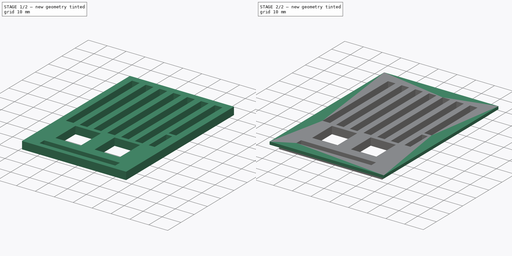
[diagram: build sequence overview — one tinted view per stage of 2, left to right]
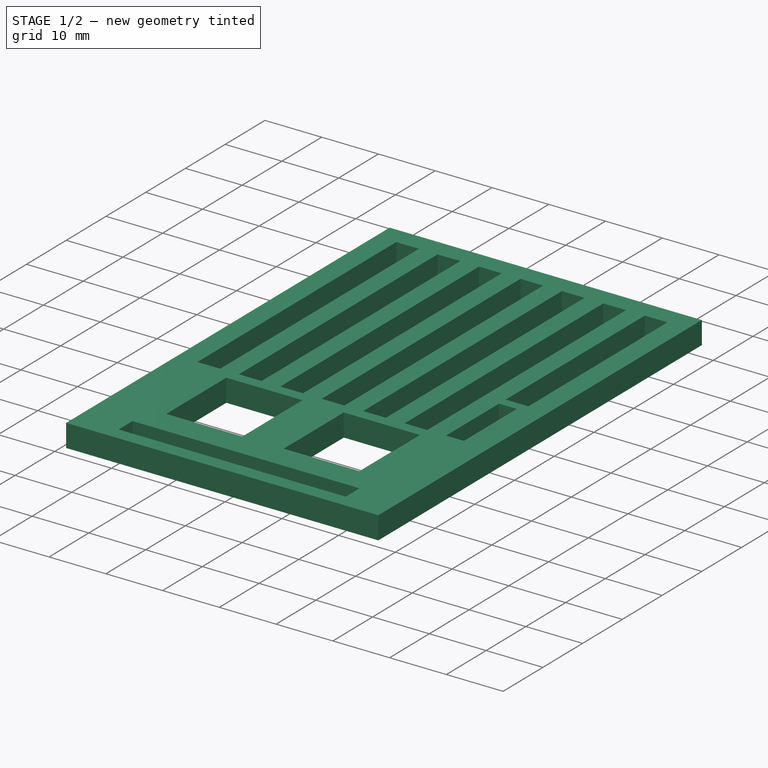
[diagram: stage 1 of 2 — iso view after this stage's code; geometry added in this stage tinted green]
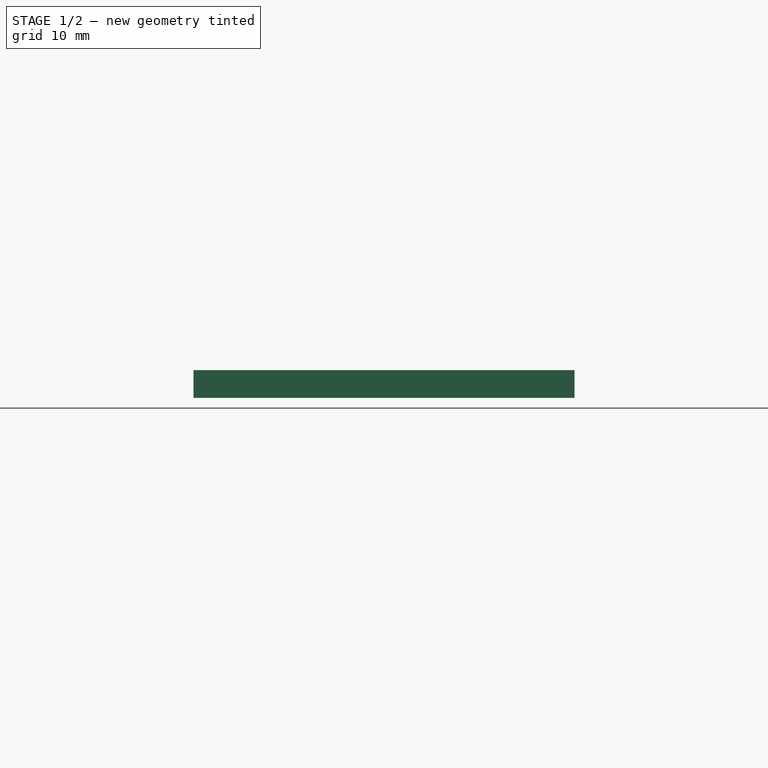
[diagram: stage 1 of 2 — front view after this stage's code; geometry added in this stage tinted green]
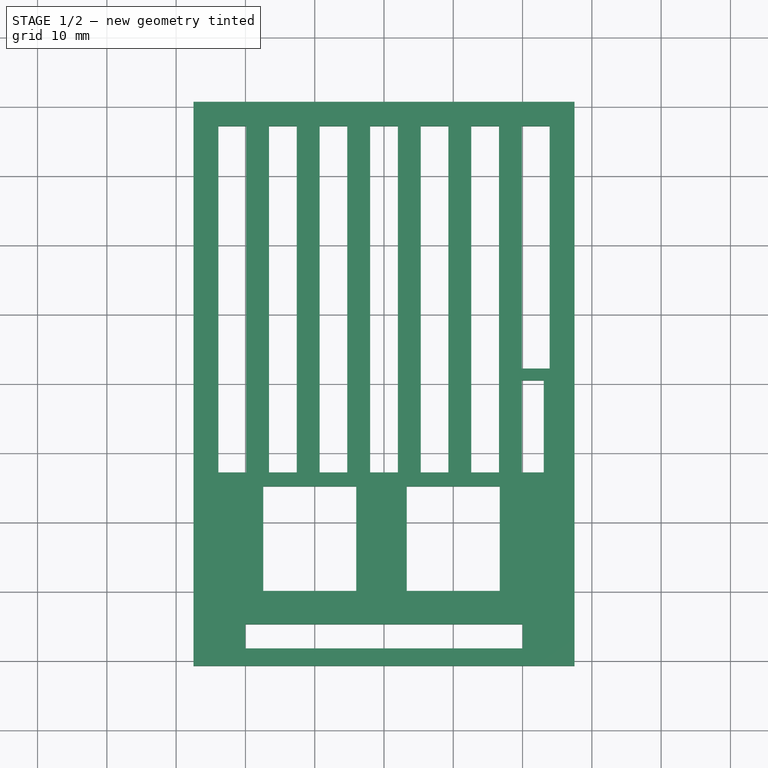
[diagram: stage 1 of 2 — top view after this stage's code; geometry added in this stage tinted green]
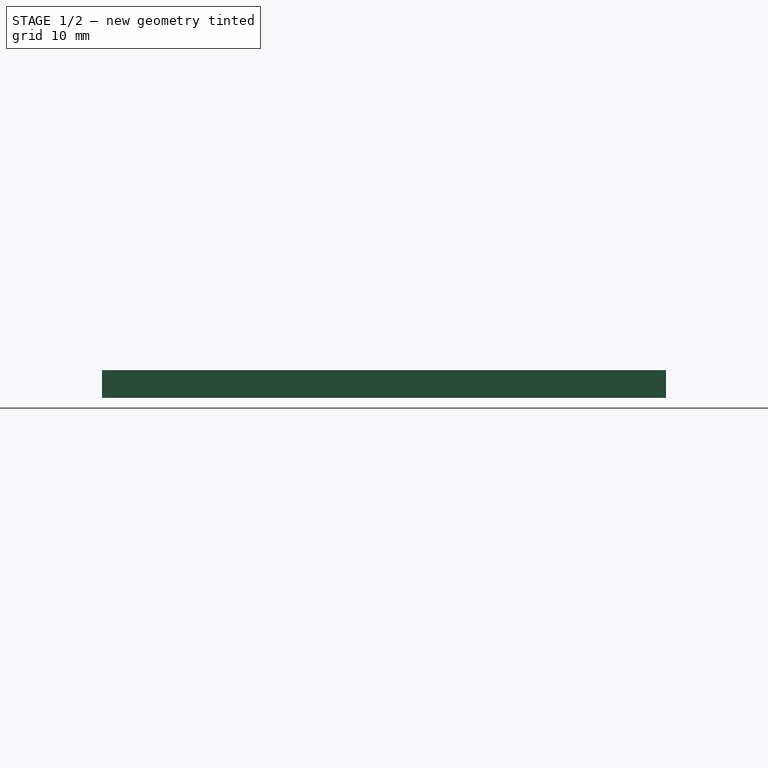
[diagram: stage 1 of 2 — right view after this stage's code; geometry added in this stage tinted green]
FCSTD DOCUMENT  (FreeCAD 0.16R4928 (Git))
Label: vent
License: CreativeCommons Attribution-ShareAlike
LicenseURL: http://creativecommons.org/licenses/by-sa/4.0/
objects: Sketcher::SketchObject×2, PartDesign::Pad×2
note: 6 computed .brp shape members not serialized (recipe doc carries the construction recipe); baked Part::Feature solids carry a one-line shape summary decoded from their .brp

FEATURE [Sketcher::SketchObject] Sketch
  sketch-geometry (56):
    g0: LineSegment StartX=-27.5 StartY=40.7 StartZ=0 EndX=27.5 EndY=40.7 EndZ=0
    g1: LineSegment StartX=27.5 StartY=40.7 StartZ=0 EndX=27.5 EndY=-40.7 EndZ=0
    g2: LineSegment StartX=27.5 StartY=-40.7 StartZ=0 EndX=-27.5 EndY=-40.7 EndZ=0
    g3: LineSegment StartX=-27.5 StartY=-40.7 StartZ=0 EndX=-27.5 EndY=40.7 EndZ=0
    g4: LineSegment StartX=-23.9 StartY=37.2 StartZ=0 EndX=-19.9 EndY=37.2 EndZ=0
    g5: LineSegment StartX=-19.9 StartY=37.2 StartZ=0 EndX=-19.9 EndY=-12.8 EndZ=0
    g6: LineSegment StartX=-19.9 StartY=-12.8 StartZ=0 EndX=-23.9 EndY=-12.8 EndZ=0
    g7: LineSegment StartX=-23.9 StartY=-12.8 StartZ=0 EndX=-23.9 EndY=37.2 EndZ=0
    g8: LineSegment StartX=-16.6 StartY=37.2 StartZ=0 EndX=-12.6 EndY=37.2 EndZ=0
    g9: LineSegment StartX=-12.6 StartY=37.2 StartZ=0 EndX=-12.6 EndY=-12.8 EndZ=0
    g10: LineSegment StartX=-12.6 StartY=-12.8 StartZ=0 EndX=-16.6 EndY=-12.8 EndZ=0
    g11: LineSegment StartX=-16.6 StartY=-12.8 StartZ=0 EndX=-16.6 EndY=37.2 EndZ=0
    g12: LineSegment StartX=-9.3 StartY=37.2 StartZ=0 EndX=-5.3 EndY=37.2 EndZ=0
    g13: LineSegment StartX=-5.3 StartY=37.2 StartZ=0 EndX=-5.3 EndY=-12.8 EndZ=0
    g14: LineSegment StartX=-5.3 StartY=-12.8 StartZ=0 EndX=-9.3 EndY=-12.8 EndZ=0
    g15: LineSegment StartX=-9.3 StartY=-12.8 StartZ=0 EndX=-9.3 EndY=37.2 EndZ=0
    g16: LineSegment StartX=-2 StartY=37.2 StartZ=0 EndX=2 EndY=37.2 EndZ=0
    g17: LineSegment StartX=2 StartY=37.2 StartZ=0 EndX=2 EndY=-12.8 EndZ=0
    g18: LineSegment StartX=2 StartY=-12.8 StartZ=0 EndX=-2 EndY=-12.8 EndZ=0
    g19: LineSegment StartX=-2 StartY=-12.8 StartZ=0 EndX=-2 EndY=37.2 EndZ=0
    g20: LineSegment StartX=5.3 StartY=37.2 StartZ=0 EndX=9.3 EndY=37.2 EndZ=0
    g21: LineSegment StartX=9.3 StartY=37.2 StartZ=0 EndX=9.3 EndY=-12.8 EndZ=0
    g22: LineSegment StartX=9.3 StartY=-12.8 StartZ=0 EndX=5.3 EndY=-12.8 EndZ=0
    g23: LineSegment StartX=5.3 StartY=-12.8 StartZ=0 EndX=5.3 EndY=37.2 EndZ=0
    g24: LineSegment StartX=12.6 StartY=37.2 StartZ=0 EndX=16.6 EndY=37.2 EndZ=0
    g25: LineSegment StartX=16.6 StartY=37.2 StartZ=0 EndX=16.6 EndY=-12.8 EndZ=0
    g26: LineSegment StartX=16.6 StartY=-12.8 StartZ=0 EndX=12.6 EndY=-12.8 EndZ=0
    g27: LineSegment StartX=12.6 StartY=-12.8 StartZ=0 EndX=12.6 EndY=37.2 EndZ=0
    g28: LineSegment StartX=19.9 StartY=37.2 StartZ=0 EndX=23.9 EndY=37.2 EndZ=0
    g29: LineSegment StartX=23.9 StartY=37.2 StartZ=0 EndX=23.9 EndY=2.2 EndZ=0
    g30: LineSegment StartX=23.9 StartY=2.2 StartZ=0 EndX=19.9 EndY=2.2 EndZ=0
    g31: LineSegment StartX=19.9 StartY=2.2 StartZ=0 EndX=19.9 EndY=37.2 EndZ=0
    g32: LineSegment StartX=19.9 StartY=0.5 StartZ=0 EndX=23.05 EndY=0.5 EndZ=0
    g33: LineSegment StartX=23.05 StartY=0.5 StartZ=0 EndX=23.05 EndY=-12.8 EndZ=0
    g34: LineSegment StartX=23.05 StartY=-12.8 StartZ=0 EndX=19.9 EndY=-12.8 EndZ=0
    g35: LineSegment StartX=19.9 StartY=-12.8 StartZ=0 EndX=19.9 EndY=0.5 EndZ=0
    g36: LineSegment [constr] StartX=-19.9 StartY=37.2 StartZ=0 EndX=-16.6 EndY=37.2 EndZ=0
    g37: LineSegment [constr] StartX=-12.6 StartY=37.2 StartZ=0 EndX=-9.3 EndY=37.2 EndZ=0
    g38: LineSegment [constr] StartX=-5.3 StartY=37.2 StartZ=0 EndX=-2 EndY=37.2 EndZ=0
    g39: LineSegment [constr] StartX=2 StartY=37.2 StartZ=0 EndX=5.3 EndY=37.2 EndZ=0
    g40: LineSegment [constr] StartX=9.3 StartY=37.2 StartZ=0 EndX=12.6 EndY=37.2 EndZ=0
    g41: LineSegment [constr] StartX=16.6 StartY=37.2 StartZ=0 EndX=19.9 EndY=37.2 EndZ=0
    g42: LineSegment [constr] StartX=16.6 StartY=-12.8 StartZ=0 EndX=19.9 EndY=-12.8 EndZ=0
    g43: LineSegment StartX=-17.42 StartY=-14.8 StartZ=0 EndX=-4 EndY=-14.8 EndZ=0
    g44: LineSegment StartX=-4 StartY=-14.8 StartZ=0 EndX=-4 EndY=-29.9 EndZ=0
    g45: LineSegment StartX=-4 StartY=-29.9 StartZ=0 EndX=-17.42 EndY=-29.9 EndZ=0
    g46: LineSegment StartX=-17.42 StartY=-29.9 StartZ=0 EndX=-17.42 EndY=-14.8 EndZ=0
    g47: LineSegment StartX=3.28 StartY=-14.8 StartZ=0 EndX=16.7 EndY=-14.8 EndZ=0
    g48: LineSegment StartX=16.7 StartY=-14.8 StartZ=0 EndX=16.7 EndY=-29.9 EndZ=0
    g49: LineSegment StartX=16.7 StartY=-29.9 StartZ=0 EndX=3.28 EndY=-29.9 EndZ=0
    g50: LineSegment StartX=3.28 StartY=-29.9 StartZ=0 EndX=3.28 EndY=-14.8 EndZ=0
    g51: LineSegment StartX=-20 StartY=-34.7 StartZ=0 EndX=20 EndY=-34.7 EndZ=0
    g52: LineSegment StartX=20 StartY=-34.7 StartZ=0 EndX=20 EndY=-38.2 EndZ=0
    g53: LineSegment StartX=20 StartY=-38.2 StartZ=0 EndX=-20 EndY=-38.2 EndZ=0
    g54: LineSegment StartX=-20 StartY=-38.2 StartZ=0 EndX=-20 EndY=-34.7 EndZ=0
    g55: LineSegment [constr] StartX=-4 StartY=-29.9 StartZ=0 EndX=3.28 EndY=-29.9 EndZ=0
  constraints (159):
    c: Coincident(g0,g1)
    c: Coincident(g1,g2)
    c: Coincident(g2,g3)
    c: Coincident(g3,g0)
    c: Horizontal(g0)
    c: Horizontal(g2)
    c: Vertical(g1)
    c: Vertical(g3)
    c: DistanceX(g0) = 55
    c: DistanceY(g1) = -81.4
    c: Symmetric(g0,g1,g-1)
    c: Coincident(g4,g5)
    c: Coincident(g5,g6)
    c: Coincident(g6,g7)
    c: Coincident(g7,g4)
    c: Horizontal(g4)
    c: Horizontal(g6)
    c: Vertical(g5)
    c: Vertical(g7)
    c: Coincident(g8,g9)
    c: Coincident(g9,g10)
    c: Coincident(g10,g11)
    c: Coincident(g11,g8)
    c: Horizontal(g8)
    c: Horizontal(g10)
    c: Vertical(g9)
    c: Vertical(g11)
    c: Coincident(g12,g13)
    c: Coincident(g13,g14)
    c: Coincident(g14,g15)
    c: Coincident(g15,g12)
    c: Horizontal(g12)
    c: Horizontal(g14)
    c: Vertical(g13)
    c: Vertical(g15)
    c: Coincident(g16,g17)
    c: Coincident(g17,g18)
    c: Coincident(g18,g19)
    c: Coincident(g19,g16)
    c: Horizontal(g16)
    c: Horizontal(g18)
    c: Vertical(g17)
    c: Vertical(g19)
    c: Coincident(g20,g21)
    c: Coincident(g21,g22)
    c: Coincident(g22,g23)
    c: Coincident(g23,g20)
    c: Horizontal(g20)
    c: Horizontal(g22)
    c: Vertical(g21)
    c: Vertical(g23)
    c: Coincident(g24,g25)
    c: Coincident(g25,g26)
    c: Coincident(g26,g27)
    c: Coincident(g27,g24)
    c: Horizontal(g24)
    c: Horizontal(g26)
    c: Vertical(g25)
    c: Vertical(g27)
    c: Coincident(g28,g29)
    c: Coincident(g29,g30)
    c: Coincident(g30,g31)
    c: Coincident(g31,g28)
    c: Horizontal(g28)
    c: Horizontal(g30)
    c: Vertical(g29)
    c: Vertical(g31)
    c: Coincident(g32,g33)
    c: Coincident(g33,g34)
    c: Coincident(g34,g35)
    c: Coincident(g35,g32)
    c: Horizontal(g32)
    c: Horizontal(g34)
    c: Vertical(g33)
    c: Vertical(g35)
    c: Equal(g7,g11)
    c: Equal(g11,g15)
    c: Equal(g15,g19)
    c: Equal(g19,g23)
    c: Equal(g23,g27)
    c: Equal(g8,g4)
    c: Equal(g4,g12)
    c: Equal(g12,g16)
    c: Equal(g16,g20)
    c: Equal(g20,g24)
    c: Equal(g24,g28)
    c: Coincident(g36,g4)
    c: Coincident(g36,g8)
    c: Horizontal(g37)
    c: Coincident(g38,g12)
    c: Horizontal(g38)
    c: Horizontal(g39)
    c: Horizontal(g40)
    c: Horizontal(g41)
    c: Coincident(g41,g24)
    c: Coincident(g41,g28)
    c: Horizontal(g36)
    c: Coincident(g8,g37)
    c: Coincident(g37,g12)
    c: Coincident(g38,g16)
    c: Coincident(g39,g16)
    c: Coincident(g20,g39)
    c: Coincident(g40,g20)
    c: Coincident(g24,g40)
    c: Equal(g36,g37)
    c: Equal(g37,g38)
    c: Equal(g38,g39)
    c: Equal(g39,g40)
    c: Equal(g40,g41)
    c: Coincident(g42,g25)
    c: Coincident(g42,g34)
    c: Horizontal(g42)
    c: Coincident(g43,g44)
    c: Coincident(g44,g45)
    c: Coincident(g45,g46)
    c: Coincident(g46,g43)
    c: Horizontal(g43)
    c: Horizontal(g45)
    c: Vertical(g44)
    c: Vertical(g46)
    c: Coincident(g47,g48)
    c: Coincident(g48,g49)
    c: Coincident(g49,g50)
    c: Coincident(g50,g47)
    c: Horizontal(g47)
    c: Horizontal(g49)
    c: Vertical(g48)
    c: Vertical(g50)
    c: Coincident(g51,g52)
    c: Coincident(g52,g53)
    c: Coincident(g53,g54)
    c: Coincident(g54,g51)
    c: Horizontal(g51)
    c: Horizontal(g53)
    c: Vertical(g52)
    c: Vertical(g54)
    c: Symmetric(g52,g53,g-2)
    c: Coincident(g55,g44)
    c: Horizontal(g55)
    c: Coincident(g55,g49)
    c: Equal(g46,g48)
    c: Equal(g43,g47)
    c: DistanceX(g48,g1) = 10.8
    c: DistanceX(g47) = 13.42
    c: DistanceY(g48) = -15.1
    c: DistanceY(g45,g2) = -10.8
    c: DistanceX(g55) = 7.28
    c: DistanceY(g52) = -3.5
    c: DistanceX(g53) = -40
    c: DistanceY(g53,g2) = -2.5
    c: DistanceY(g7) = 50
    c: DistanceY(g4,g0) = 3.5
    c: Symmetric(g4,g28,g-2)
    c: DistanceX(g8) = 4
    c: DistanceX(g36) = 3.3
    c: DistanceX(g34) = -3.15
    c: DistanceY(g33) = -13.3
    c: Equal(g42,g41)
    c: DistanceY(g29) = -35
FEATURE [PartDesign::Pad] Pad
  Length = 4
  Length2 = 100
  Sketch = -> Sketch
  Type = 0
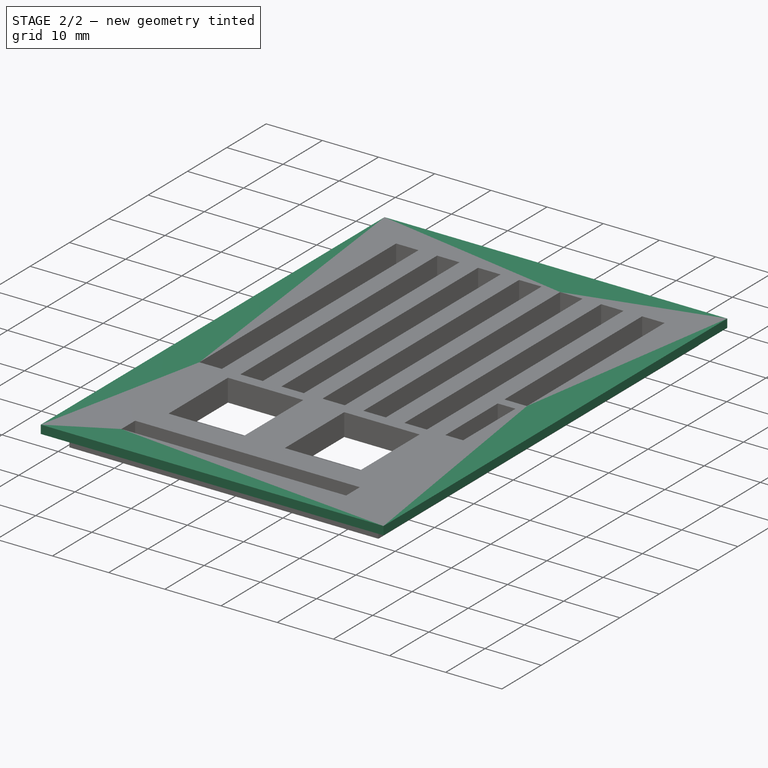
[diagram: stage 2 of 2 — iso view after this stage's code; geometry added in this stage tinted green]
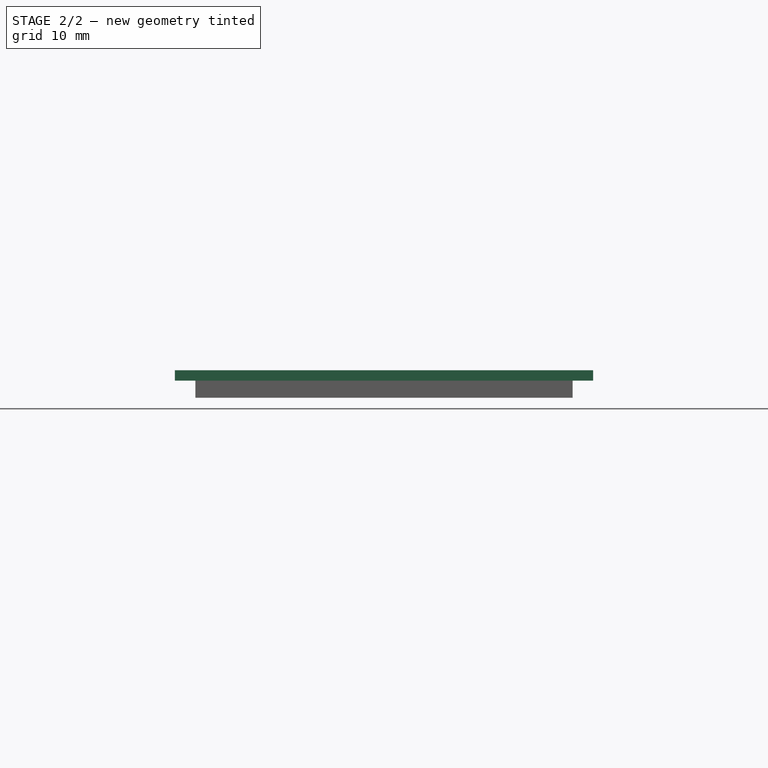
[diagram: stage 2 of 2 — front view after this stage's code; geometry added in this stage tinted green]
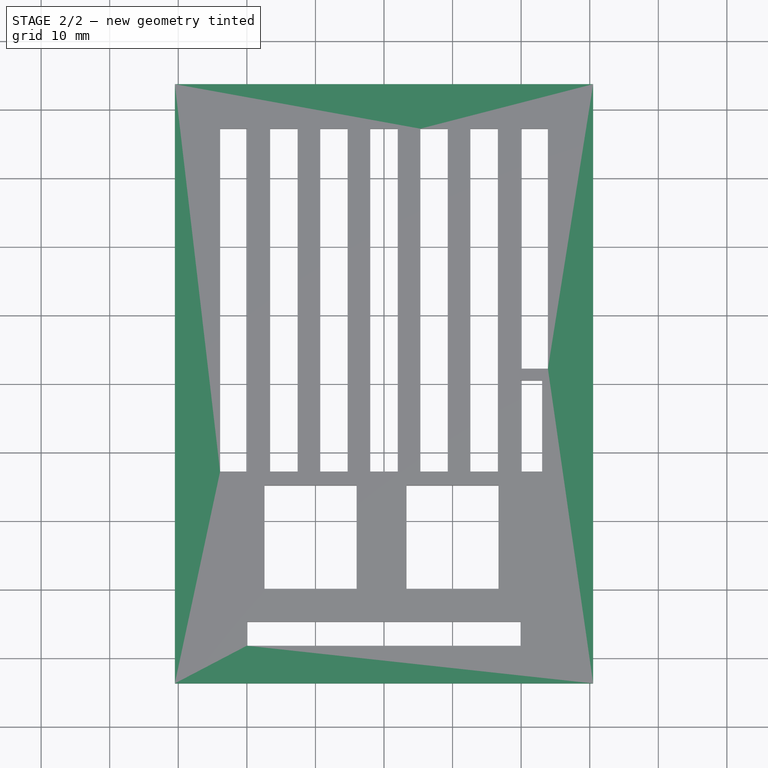
[diagram: stage 2 of 2 — top view after this stage's code; geometry added in this stage tinted green]
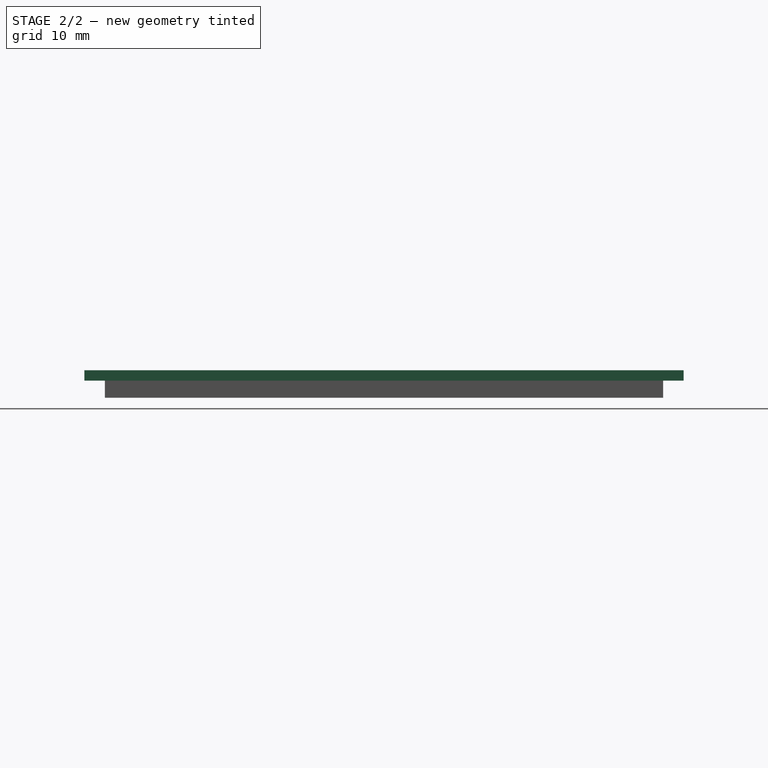
[diagram: stage 2 of 2 — right view after this stage's code; geometry added in this stage tinted green]
FEATURE [Sketcher::SketchObject] Sketch001
  ExternalGeometry = -> [Pad]
  Placement = pos=(0,0,4) rot=(0,0,1;0rad)
  Support = -> Pad [Face50]
  sketch-geometry (8):
    g0: LineSegment StartX=-27.5 StartY=40.7 StartZ=0 EndX=27.5 EndY=40.7 EndZ=0
    g1: LineSegment StartX=27.5 StartY=40.7 StartZ=0 EndX=27.5 EndY=-40.7 EndZ=0
    g2: LineSegment StartX=27.5 StartY=-40.7 StartZ=0 EndX=-27.5 EndY=-40.7 EndZ=0
    g3: LineSegment StartX=-27.5 StartY=-40.7 StartZ=0 EndX=-27.5 EndY=40.7 EndZ=0
    g4: LineSegment StartX=-30.5 StartY=43.7 StartZ=0 EndX=30.5 EndY=43.7 EndZ=0
    g5: LineSegment StartX=30.5 StartY=43.7 StartZ=0 EndX=30.5 EndY=-43.7 EndZ=0
    g6: LineSegment StartX=30.5 StartY=-43.7 StartZ=0 EndX=-30.5 EndY=-43.7 EndZ=0
    g7: LineSegment StartX=-30.5 StartY=-43.7 StartZ=0 EndX=-30.5 EndY=43.7 EndZ=0
  constraints (21):
    c: Coincident(g0,g1)
    c: Coincident(g1,g2)
    c: Coincident(g2,g3)
    c: Coincident(g3,g0)
    c: Horizontal(g0)
    c: Horizontal(g2)
    c: Vertical(g1)
    c: Vertical(g3)
    c: Coincident(g0,g-3)
    c: Coincident(g1,g-4)
    c: Coincident(g4,g5)
    c: Coincident(g5,g6)
    c: Coincident(g6,g7)
    c: Coincident(g7,g4)
    c: Horizontal(g4)
    c: Horizontal(g6)
    c: Vertical(g5)
    c: Vertical(g7)
    c: Symmetric(g5,g4,g-1)
    c: DistanceX(g0,g4) = 3
    c: DistanceY(g0,g4) = 3
FEATURE [PartDesign::Pad] Pad001
  Length = 1.5
  Length2 = 100
  Reversed = true
  Sketch = -> Sketch001
  Type = 0
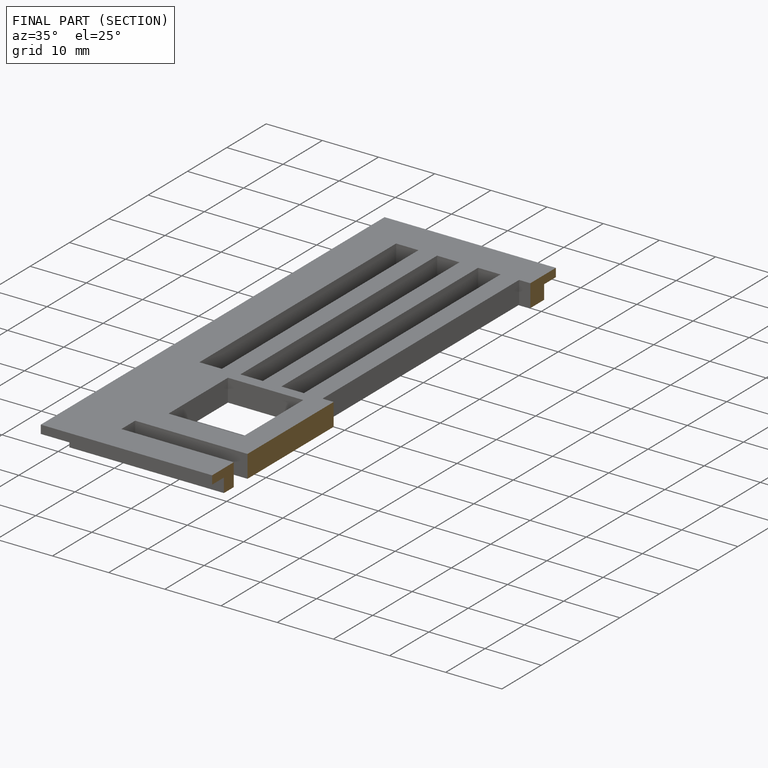
[diagram: finished part — half-section view (interior)]
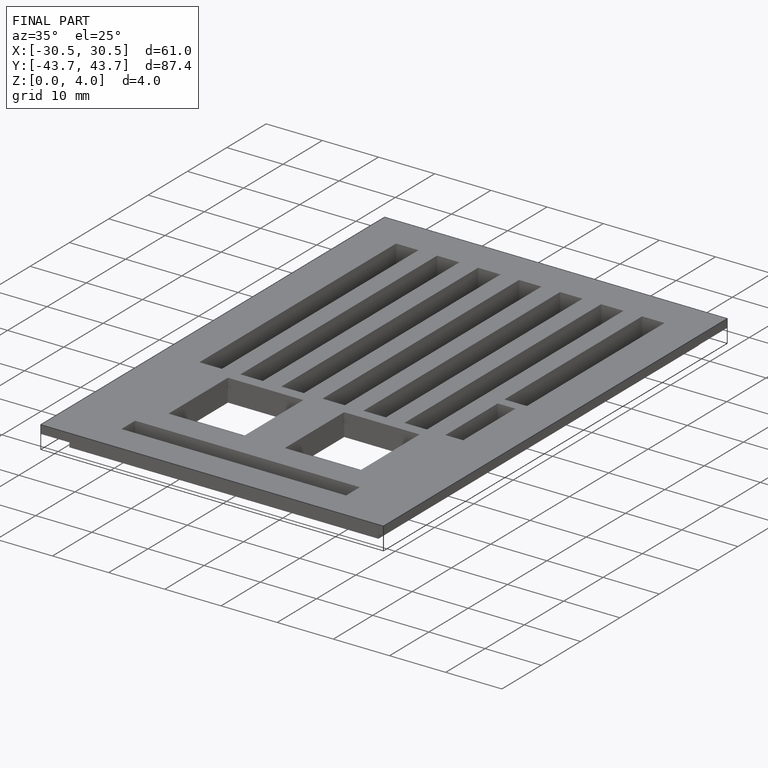
[diagram: finished part — iso view with bounding-box wireframe]
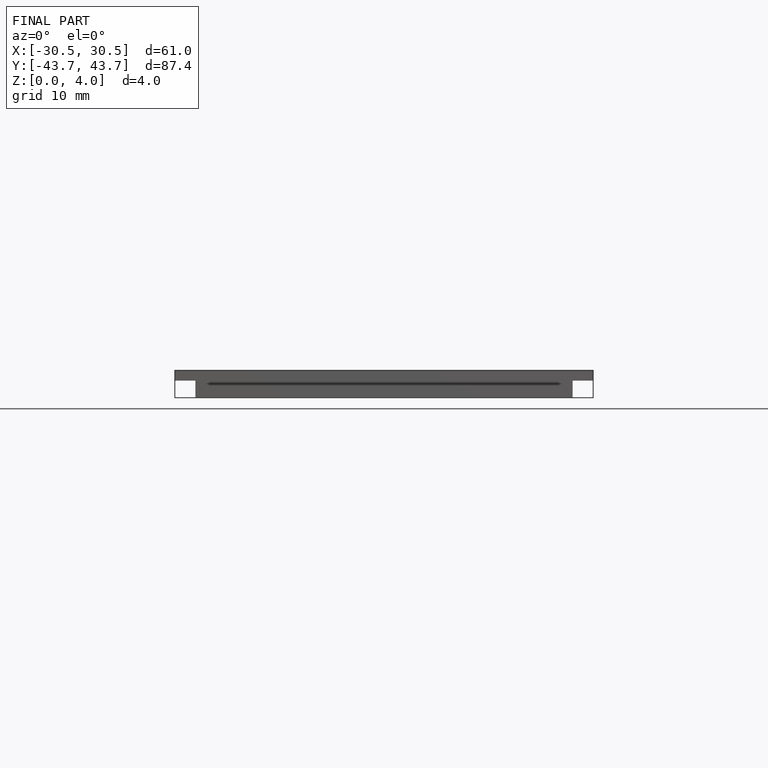
[diagram: finished part — front view with bounding-box wireframe]
